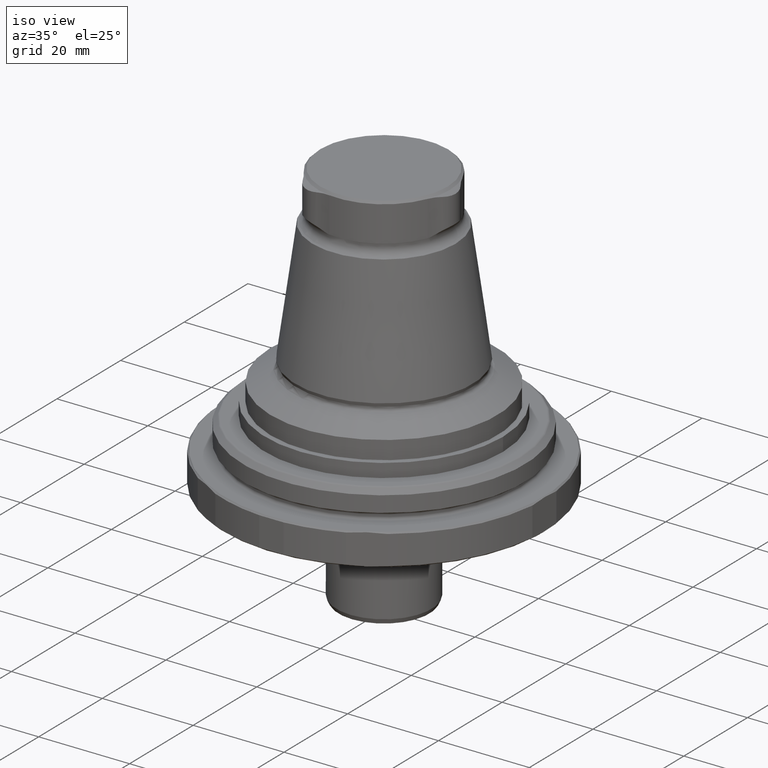
[diagram: clean part render]
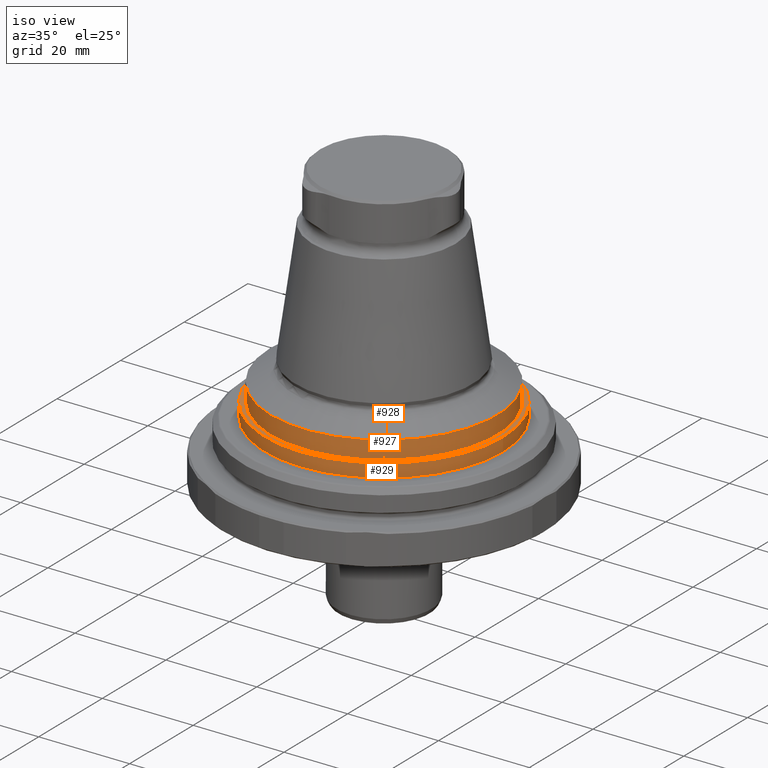
[diagram: same view with one multi-face feature highlighted, each face labeled with its STEP entity id]
A machine part, iso view. The highlighted faces form ONE feature: a stepped (counterbored) hole: 2 coaxial cylindrical walls of radii 25 -> 26.2 mm joined by 1 annular planar shoulder face(s). The faces share edges in the B-rep.
Their STEP definitions:
[1] entity #929 (Cylinder):
#137=CYLINDRICAL_SURFACE('',#1034,26.2);
#290=ORIENTED_EDGE('',*,*,#480,.T.);
#291=ORIENTED_EDGE('',*,*,#481,.T.);
#480=EDGE_CURVE('',#587,#587,#658,.T.);
#481=EDGE_CURVE('',#588,#588,#659,.T.);
#587=VERTEX_POINT('',#1634);
#588=VERTEX_POINT('',#1637);
#658=CIRCLE('',#1033,26.2);
#659=CIRCLE('',#1035,26.2);
#735=EDGE_LOOP('',(#290));
#736=EDGE_LOOP('',(#291));
#831=FACE_BOUND('',#735,.T.);
#832=FACE_BOUND('',#736,.T.);
#929=ADVANCED_FACE('',(#831,#832),#137,.T.);
#1033=AXIS2_PLACEMENT_3D('',#1633,#1225,#1226);
#1034=AXIS2_PLACEMENT_3D('',#1635,#1227,#1228);
#1035=AXIS2_PLACEMENT_3D('',#1636,#1229,#1230);
#1225=DIRECTION('',(-5.5264198129461E-16,6.90472036344684E-17,-1.));
#1226=DIRECTION('',(-1.,9.77164313006873E-16,5.58279830278911E-16));
#1227=DIRECTION('',(5.5264198129461E-16,-7.81688594334958E-18,1.));
#1228=DIRECTION('',(1.,-9.77164313006873E-16,-5.58279830278911E-16));
#1229=DIRECTION('',(5.5264198129461E-16,5.34134317477693E-17,1.));
#1230=DIRECTION('',(1.,-9.77164313006873E-16,-5.58279830278911E-16));
#1633=CARTESIAN_POINT('',(-8.94460880349364E-14,-9.81718178561464E-14,8.50000000000001));
#1634=CARTESIAN_POINT('',(-26.2000000000001,-7.25701128553663E-14,8.50000000000002));
#1635=CARTESIAN_POINT('',(-9.02750510068783E-14,-9.81600925272314E-14,7.00000000000001));
#1636=CARTESIAN_POINT('',(-8.02869289039323E-14,-9.81483671983164E-14,5.50000000000001));
#1637=CARTESIAN_POINT('',(26.1999999999999,-1.23750072199096E-13,5.49999999999999));
[2] entity #927 (Cylinder):
#136=CYLINDRICAL_SURFACE('',#1030,25.);
#286=ORIENTED_EDGE('',*,*,#478,.T.);
#287=ORIENTED_EDGE('',*,*,#479,.F.);
#478=EDGE_CURVE('',#585,#585,#656,.T.);
#479=EDGE_CURVE('',#586,#586,#657,.T.);
#585=VERTEX_POINT('',#1628);
#586=VERTEX_POINT('',#1631);
#656=CIRCLE('',#1029,25.);
#657=CIRCLE('',#1031,25.);
#731=EDGE_LOOP('',(#286));
#732=EDGE_LOOP('',(#287));
#827=FACE_BOUND('',#731,.T.);
#828=FACE_BOUND('',#732,.T.);
#927=ADVANCED_FACE('',(#827,#828),#136,.T.);
#1029=AXIS2_PLACEMENT_3D('',#1627,#1217,#1218);
#1030=AXIS2_PLACEMENT_3D('',#1629,#1219,#1220);
#1031=AXIS2_PLACEMENT_3D('',#1630,#1221,#1222);
#1217=DIRECTION('',(-4.38328612912168E-16,-8.51929322185263E-24,-1.));
#1218=DIRECTION('',(-1.,9.77164313006873E-16,4.38328610599545E-16));
#1219=DIRECTION('',(-4.38328612912168E-16,-8.51929322185263E-24,-1.));
#1220=DIRECTION('',(-1.,9.77164313006873E-16,4.38328610599545E-16));
#1221=DIRECTION('',(-4.38328612912168E-16,-8.51929322185263E-24,-1.));
#1222=DIRECTION('',(-1.,9.77164313006873E-16,4.38328610599545E-16));
#1627=CARTESIAN_POINT('',(-8.2284770010017E-14,-9.81645350618484E-14,12.498889300107));
#1628=CARTESIAN_POINT('',(-25.0000000000001,-7.37354272366765E-14,12.498889300107));
#1629=CARTESIAN_POINT('',(-6.36558039612498E-14,-9.81645346997784E-14,54.998889300107));
#1630=CARTESIAN_POINT('',(-8.40375976101222E-14,-9.81645350959161E-14,8.50000000000001));
#1631=CARTESIAN_POINT('',(-25.0000000000001,-7.37354272707442E-14,8.50000000000002));
[3] entity #928 (Plane):
#288=ORIENTED_EDGE('',*,*,#480,.F.);
#289=ORIENTED_EDGE('',*,*,#479,.T.);
#479=EDGE_CURVE('',#586,#586,#657,.T.);
#480=EDGE_CURVE('',#587,#587,#658,.T.);
#586=VERTEX_POINT('',#1631);
#587=VERTEX_POINT('',#1634);
#657=CIRCLE('',#1031,25.);
#658=CIRCLE('',#1033,26.2);
#733=EDGE_LOOP('',(#288));
#734=EDGE_LOOP('',(#289));
#829=FACE_BOUND('',#733,.T.);
#830=FACE_BOUND('',#734,.T.);
#883=PLANE('',#1032);
#928=ADVANCED_FACE('',(#829,#830),#883,.T.);
#1031=AXIS2_PLACEMENT_3D('',#1630,#1221,#1222);
#1032=AXIS2_PLACEMENT_3D('',#1632,#1223,#1224);
#1033=AXIS2_PLACEMENT_3D('',#1633,#1225,#1226);
#1221=DIRECTION('',(-4.38328612912168E-16,-8.51929322185263E-24,-1.));
#1222=DIRECTION('',(-1.,9.77164313006873E-16,4.38328610599545E-16));
#1223=DIRECTION('',(5.5264198129461E-16,-6.90472036344684E-17,1.));
#1224=DIRECTION('',(-3.55103316543315E-16,1.,6.90471738482395E-17));
#1225=DIRECTION('',(-5.5264198129461E-16,6.90472036344684E-17,-1.));
#1226=DIRECTION('',(-1.,9.77164313006873E-16,5.58279830278911E-16));
#1630=CARTESIAN_POINT('',(-8.40375976101222E-14,-9.81645350959161E-14,8.50000000000001));
#1631=CARTESIAN_POINT('',(-25.0000000000001,-7.37354272707442E-14,8.50000000000002));
#1632=CARTESIAN_POINT('',(-8.40375454974924E-14,-9.81718178561464E-14,8.50000000000001));
#1633=CARTESIAN_POINT('',(-8.94460880349364E-14,-9.81718178561464E-14,8.50000000000001));
#1634=CARTESIAN_POINT('',(-26.2000000000001,-7.25701128553663E-14,8.50000000000002));